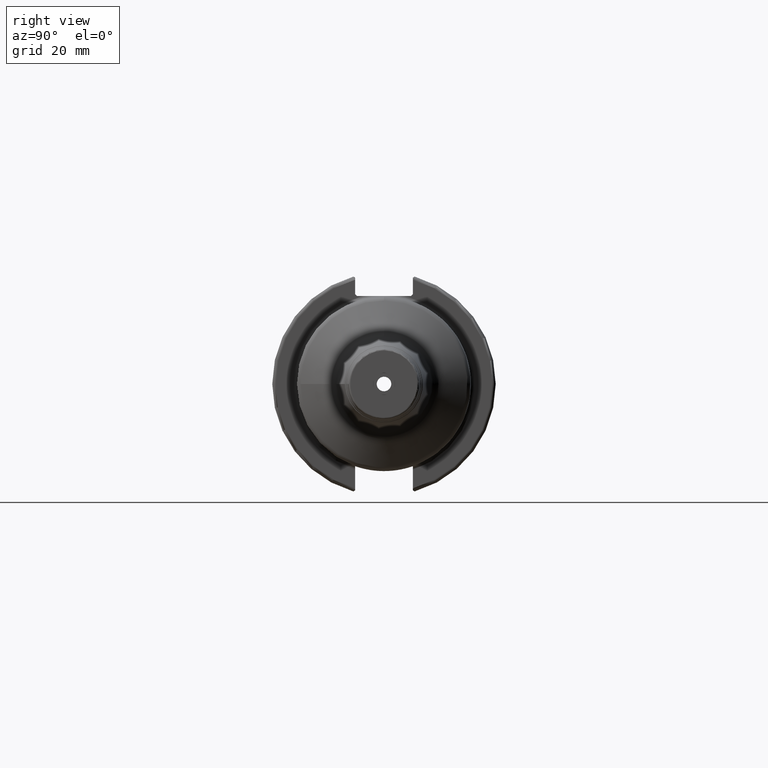
[diagram: clean part render]
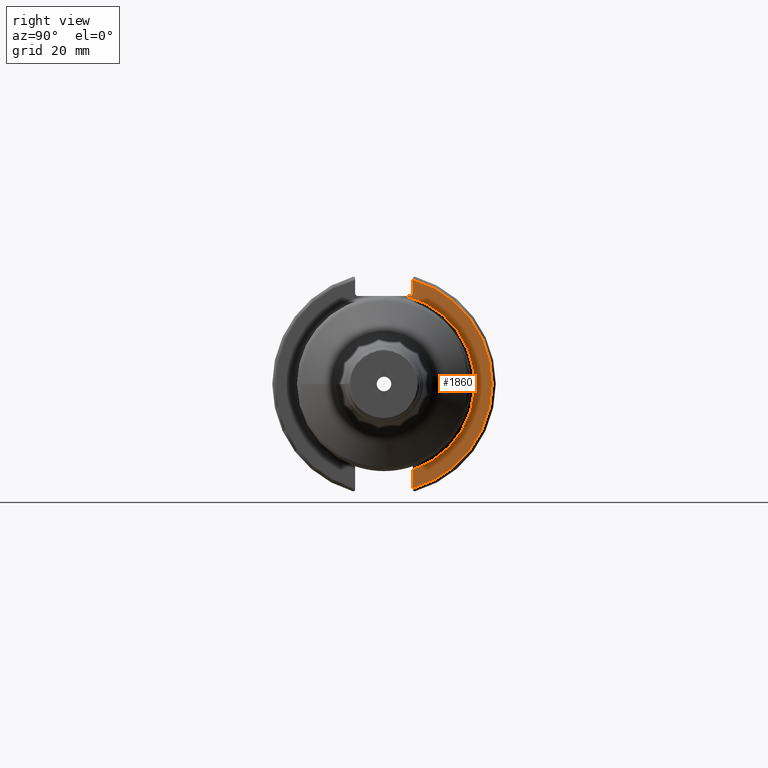
[diagram: same view with one face highlighted and labeled with its STEP entity id]
A machine part, right view. The second image highlights one B-rep face of the part: STEP entity #1860.
In plain terms, the highlighted planar face has unit normal (1, 0, 0).
Its self-contained STEP definition (entity closure, byte-faithful):
#51=PLANE('',#2058);
#215=FACE_OUTER_BOUND('',#325,.T.);
#325=EDGE_LOOP('',(#1397,#1398,#1399,#1400,#1401,#1402));
#435=LINE('',#3121,#533);
#436=LINE('',#3125,#534);
#437=LINE('',#3127,#535);
#438=LINE('',#3128,#536);
#533=VECTOR('',#2433,10.);
#534=VECTOR('',#2436,10.);
#535=VECTOR('',#2437,10.);
#536=VECTOR('',#2438,10.);
#675=CIRCLE('',#2055,25.75);
#677=CIRCLE('',#2059,30.75);
#795=VERTEX_POINT('',#3074);
#797=VERTEX_POINT('',#3097);
#802=VERTEX_POINT('',#3120);
#803=VERTEX_POINT('',#3122);
#804=VERTEX_POINT('',#3124);
#805=VERTEX_POINT('',#3126);
#1019=EDGE_CURVE('',#797,#795,#675,.T.);
#1025=EDGE_CURVE('',#797,#802,#435,.T.);
#1026=EDGE_CURVE('',#803,#802,#677,.T.);
#1027=EDGE_CURVE('',#803,#804,#436,.T.);
#1028=EDGE_CURVE('',#805,#804,#437,.T.);
#1029=EDGE_CURVE('',#805,#795,#438,.T.);
#1397=ORIENTED_EDGE('',*,*,#1019,.F.);
#1398=ORIENTED_EDGE('',*,*,#1025,.T.);
#1399=ORIENTED_EDGE('',*,*,#1026,.F.);
#1400=ORIENTED_EDGE('',*,*,#1027,.T.);
#1401=ORIENTED_EDGE('',*,*,#1028,.F.);
#1402=ORIENTED_EDGE('',*,*,#1029,.T.);
#1860=ADVANCED_FACE('',(#215),#51,.T.);
#2055=AXIS2_PLACEMENT_3D('',#3108,#2421,#2422);
#2058=AXIS2_PLACEMENT_3D('',#3119,#2431,#2432);
#2059=AXIS2_PLACEMENT_3D('',#3123,#2434,#2435);
#2421=DIRECTION('center_axis',(1.,0.,0.));
#2422=DIRECTION('ref_axis',(0.,6.12323399573677E-17,1.));
#2431=DIRECTION('center_axis',(1.,0.,0.));
#2432=DIRECTION('ref_axis',(0.,0.,-1.));
#2433=DIRECTION('',(0.,0.,-1.));
#2434=DIRECTION('center_axis',(-1.,0.,0.));
#2435=DIRECTION('ref_axis',(0.,1.,-6.12323399573677E-17));
#2436=DIRECTION('',(0.,0.,-1.));
#2437=DIRECTION('',(0.,0.707106781186549,0.707106781186546));
#2438=DIRECTION('',(0.,-1.,0.));
#3074=CARTESIAN_POINT('',(19.05,6.16948133962654,25.));
#3097=CARTESIAN_POINT('',(19.05,8.19,-24.4128326910254));
#3108=CARTESIAN_POINT('Origin',(19.05,0.,0.));
#3119=CARTESIAN_POINT('Origin',(19.05,0.,0.));
#3120=CARTESIAN_POINT('',(19.05,8.19,-29.6392712461019));
#3121=CARTESIAN_POINT('',(19.05,8.19,-11.3));
#3122=CARTESIAN_POINT('',(19.05,8.19,29.6392712461019));
#3123=CARTESIAN_POINT('Origin',(19.05,0.,0.));
#3124=CARTESIAN_POINT('',(19.05,8.19,25.5));
#3125=CARTESIAN_POINT('',(19.05,8.19,12.5));
#3126=CARTESIAN_POINT('',(19.05,7.69,25.));
#3127=CARTESIAN_POINT('',(19.05,-0.35750000000001,16.9525));
#3128=CARTESIAN_POINT('',(19.05,0.,25.));